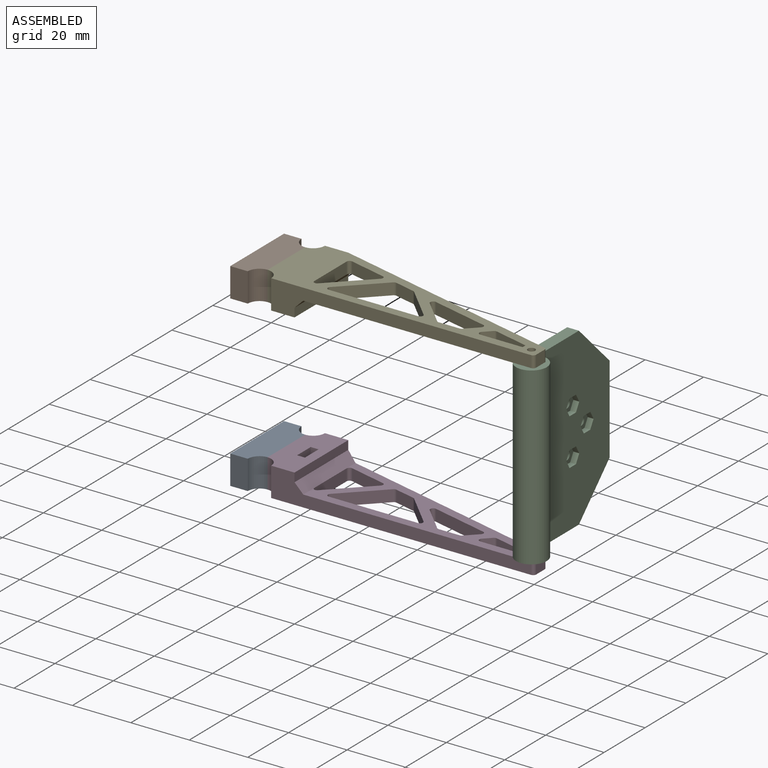
[diagram: assembled view]
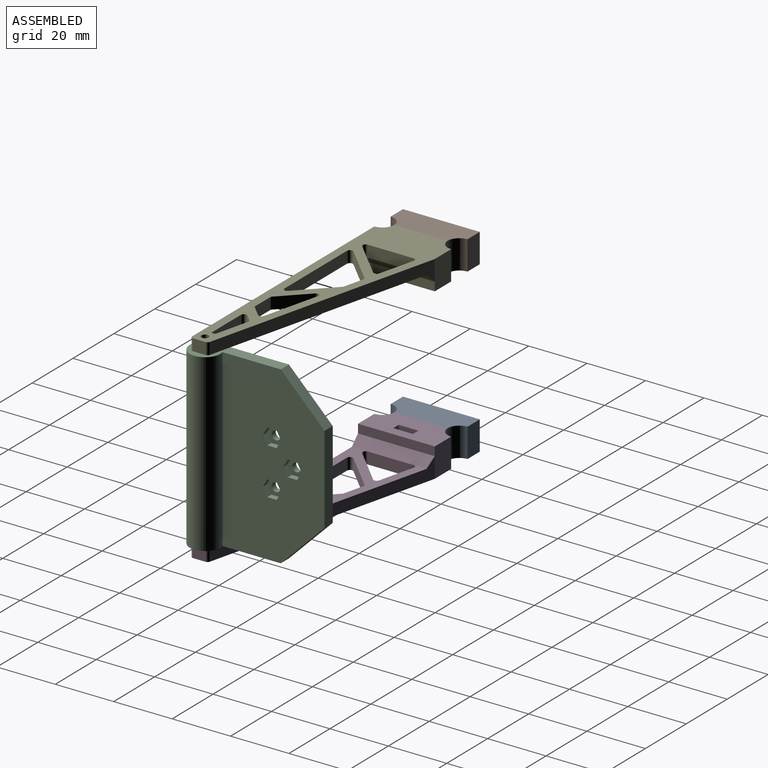
[diagram: assembled view, second angle]
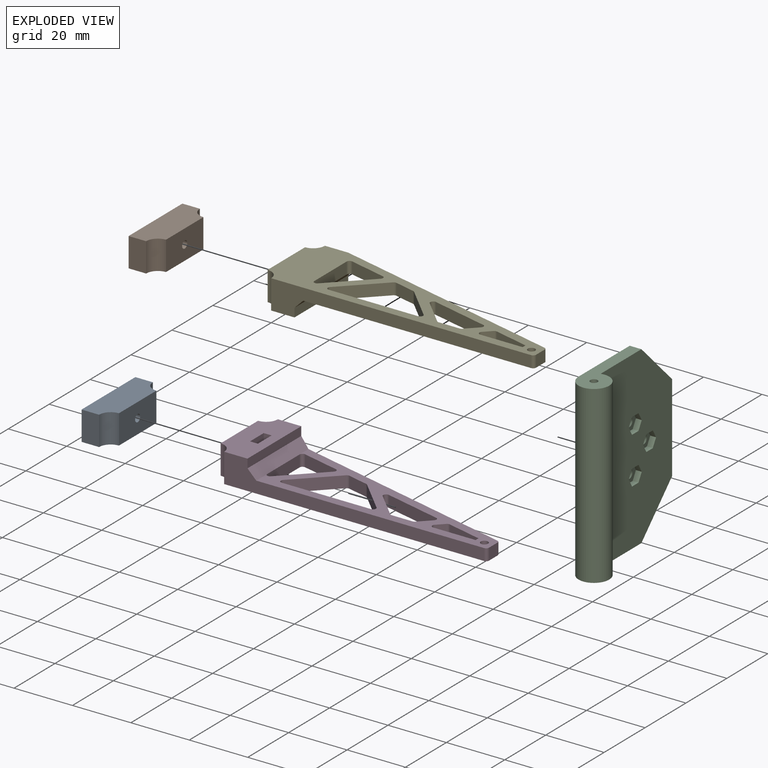
[diagram: exploded view]
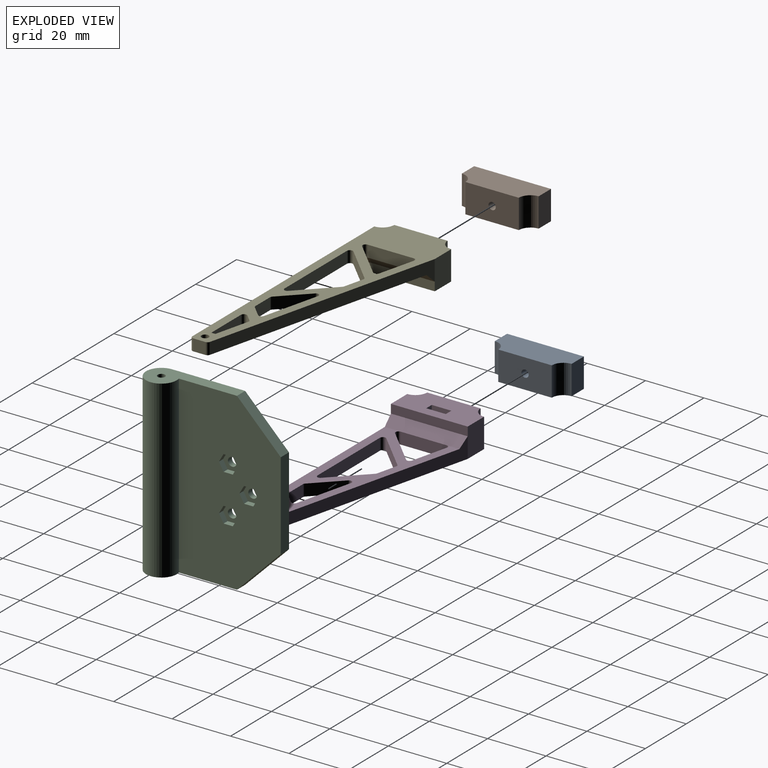
[diagram: exploded view, second angle]
ASSEMBLY  parts=5 mates=4
PART A: 11 faces, bbox 10x26.3x10 mm
  f0: cylinder r=1.25mm len=8mm, axis (-1,0,0), area 62.8mm2, adj f6,f10
  f1: cylinder r=4mm len=10mm, axis (0,0,-1), area 62.8mm2, adj f2,f6,f7,f8
  f2: plane 10x6mm, normal (0,1,0), area 60mm2, adj f1,f3,f7,f8
  f3: plane 26.3x10mm, normal (-1,0,0), area 229.8mm2, adj f2,f4,f7,f8,f9
  f4: plane 10x6mm, normal (0,-1,0), area 60mm2, adj f3,f5,f7,f8
  f5: cylinder r=4mm len=10mm, axis (0,0,-1), area 62.8mm2, adj f4,f6,f7,f8
  f6: plane 18.3x10mm, normal (1,0,0), area 178.1mm2, adj f0,f1,f5,f7,f8
  f7: plane 26.3x10mm, normal (0,0,1), area 237.9mm2, adj f1,f2,f3,f4,f5,f6
  f8: plane 26.3x10mm, normal (0,0,-1), area 237.9mm2, adj f1,f2,f3,f4,f5,f6
  f9: cylinder r=3.25mm len=6.5mm, axis (-1,0,0), area 40.8mm2, adj f3,f10
  f10: plane 6.5x6.5mm, normal (-1,0,0), area 28.3mm2, adj f0,f9
PART B: 11 faces, bbox 10x26.3x10 mm
  f0: cylinder r=1.25mm len=8mm, axis (-1,0,0), area 62.8mm2, adj f6,f10
  f1: cylinder r=4mm len=10mm, axis (0,0,1), area 62.8mm2, adj f2,f6,f7,f8
  f2: plane 10x6mm, normal (0,1,0), area 60mm2, adj f1,f3,f7,f8
  f3: plane 26.3x10mm, normal (-1,0,0), area 229.8mm2, adj f2,f4,f7,f8,f9
  f4: plane 10x6mm, normal (0,-1,0), area 60mm2, adj f3,f5,f7,f8
  f5: cylinder r=4mm len=10mm, axis (0,0,1), area 62.8mm2, adj f4,f6,f7,f8
  f6: plane 18.3x10mm, normal (1,0,0), area 178.1mm2, adj f0,f1,f5,f7,f8
  f7: plane 26.3x10mm, normal (0,0,-1), area 237.9mm2, adj f1,f2,f3,f4,f5,f6
  f8: plane 26.3x10mm, normal (0,0,1), area 237.9mm2, adj f1,f2,f3,f4,f5,f6
  f9: cylinder r=3.25mm len=6.5mm, axis (-1,0,0), area 40.8mm2, adj f3,f10
  f10: plane 6.5x6.5mm, normal (-1,0,0), area 28.3mm2, adj f0,f9
PART C: 33 faces, bbox 10.5x45.3x60 mm
  f0: plane 60x34.9mm, normal (1,0,0), area 1790.5mm2, adj f5,f6,f8,f9,f10,f11,f12,f13
  f1: cylinder r=1.5mm len=3mm, axis (1,0,0), area 18.8mm2, adj f4,f32
  f2: cylinder r=1.5mm len=3mm, axis (1,0,0), area 18.8mm2, adj f4,f25
  f3: cylinder r=1.5mm len=3mm, axis (1,0,0), area 18.8mm2, adj f4,f18
  f4: plane 60x40mm, normal (-1,0,0), area 2153.8mm2, adj f1,f2,f3,f5,f6,f8,f9,f10
  f5: cylinder r=5.25mm len=60mm, axis (0,0,-1), area 1560.1mm2, adj f0,f4,f8,f9
  f6: plane 30x4mm, normal (0,1,0), area 120mm2, adj f0,f4,f10,f11
  f7: cylinder r=1.25mm len=60mm, axis (0,0,-1), area 471.2mm2, adj f8,f9
  f8: plane 30.25x10.5mm, normal (0,0,1), area 166.5mm2, adj f0,f4,f5,f7,f11
  f9: plane 30.25x10.5mm, normal (0,0,-1), area 166.5mm2, adj f0,f4,f5,f7,f10
  f10: plane 15x15mm, normal (0,0.71,-0.71), area 84.9mm2, adj f0,f4,f6,f9
  f11: plane 15x15mm, normal (0,0.71,0.71), area 84.9mm2, adj f0,f4,f6,f8
  f12: plane 2.75x2mm, normal (0,0.87,-0.5), area 6.4mm2, adj f0,f13,f17,f18
  f13: plane 2.75x2mm, normal (0,0.87,0.5), area 6.4mm2, adj f0,f12,f14,f18
  f14: plane 3.18x2mm, normal (0,0,1), area 6.4mm2, adj f0,f13,f15,f18
  f15: plane 2.75x2mm, normal (0,-0.87,0.5), area 6.4mm2, adj f0,f14,f16,f18
  f16: plane 2.75x2mm, normal (0,-0.87,-0.5), area 6.4mm2, adj f0,f15,f17,f18
  f17: plane 3.18x2mm, normal (0,0,-1), area 6.4mm2, adj f0,f12,f16,f18
  f18: plane 6.35x5.5mm, normal (1,0,0), area 19.1mm2, adj f3,f12,f13,f14,f15,f16,f17
  f19: plane 2.75x2mm, normal (0,0.87,-0.5), area 6.4mm2, adj f0,f20,f24,f25
  f20: plane 2.75x2mm, normal (0,0.87,0.5), area 6.4mm2, adj f0,f19,f21,f25
  f21: plane 3.18x2mm, normal (0,0,1), area 6.4mm2, adj f0,f20,f22,f25
  f22: plane 2.75x2mm, normal (0,-0.87,0.5), area 6.4mm2, adj f0,f21,f23,f25
  f23: plane 2.75x2mm, normal (0,-0.87,-0.5), area 6.4mm2, adj f0,f22,f24,f25
  f24: plane 3.18x2mm, normal (0,0,-1), area 6.4mm2, adj f0,f19,f23,f25
  f25: plane 6.35x5.5mm, normal (1,0,0), area 19.1mm2, adj f2,f19,f20,f21,f22,f23,f24
  f26: plane 2.75x2mm, normal (0,0.87,-0.5), area 6.4mm2, adj f0,f27,f31,f32
  f27: plane 2.75x2mm, normal (0,0.87,0.5), area 6.4mm2, adj f0,f26,f28,f32
  f28: plane 3.18x2mm, normal (0,0,1), area 6.4mm2, adj f0,f27,f29,f32
  f29: plane 2.75x2mm, normal (0,-0.87,0.5), area 6.4mm2, adj f0,f28,f30,f32
  f30: plane 2.75x2mm, normal (0,-0.87,-0.5), area 6.4mm2, adj f0,f29,f31,f32
  f31: plane 3.18x2mm, normal (0,0,-1), area 6.4mm2, adj f0,f26,f30,f32
  f32: plane 6.35x5.5mm, normal (1,0,0), area 19.1mm2, adj f1,f26,f27,f28,f29,f30,f31
PART D: 57 faces, bbox 94x26.3x10 mm
  f0: plane 2.9x2.75mm, normal (0,-0.87,-0.5), area 0.2mm2, adj f1,f31,f34,f38,f40,f41
  f1: plane 3.35x0.05mm, normal (0,0,-1), area 0.2mm2, adj f0,f34,f35,f40
  f2: plane 18.3x10mm, normal (-1,0,0), area 178.1mm2, adj f23,f25,f27,f28,f30
  f3: plane 12.64x12.64mm, normal (-0.71,0.71,0), area 71.5mm2, adj f22,f23,f49,f51
  f4: plane 15.77x4mm, normal (1,0,0), area 63.1mm2, adj f23,f29,f49,f50
  f5: plane 30.54x4mm, normal (0,1,0), area 122.2mm2, adj f22,f23,f47,f48
  f6: plane 12.66x12.66mm, normal (0.71,-0.71,0), area 71.6mm2, adj f22,f23,f48,f52
  f7: plane 6.95x4mm, normal (-0.24,-0.97,0), area 28.6mm2, adj f22,f23,f52,f53
  f8: plane 7.17x4mm, normal (0,1,0), area 28.7mm2, adj f22,f23,f45,f46
  f9: plane 8.61x8.61mm, normal (0.71,0.71,0), area 48.7mm2, adj f22,f23,f46,f54
  f10: plane 19.55x4.84mm, normal (-0.24,-0.97,0), area 80.6mm2, adj f22,f23,f54,f55
  f11: plane 89x10mm, normal (0,-1,0), area 408.5mm2, adj f22,f23,f24,f25,f28,f29,f43
  f12: plane 4.22x4mm, normal (1,0,0), area 16.9mm2, adj f22,f23,f42,f43
  f13: plane 81.24x20.11mm, normal (0.24,0.97,0), area 339.4mm2, adj f22,f23,f26,f29,f42
  f14: plane 4x1.4mm, normal (-1,0,0), area 5.6mm2, adj f15,f20,f22,f23
  f15: plane 14.49x4mm, normal (0,1,0), area 58mm2, adj f14,f22,f23,f44
  f16: plane 4x2.37mm, normal (0.71,-0.71,0), area 13.4mm2, adj f22,f23,f44,f56
  f17: plane 10.94x10.94mm, normal (-0.71,-0.71,0), area 61.9mm2, adj f22,f23,f47,f53
  f18: plane 4x3.77mm, normal (-0.71,0.71,0), area 21.3mm2, adj f22,f23,f45,f55
  f19: cylinder r=1.25mm len=4mm, axis (0,0,-1), area 31.4mm2, adj f22,f23
  f20: plane 11.88x4mm, normal (-0.24,-0.97,0), area 49mm2, adj f14,f22,f23,f56
  f21: plane 12.64x4mm, normal (-0.24,-0.97,0), area 52.1mm2, adj f22,f23,f50,f51
  f22: plane 79x25.56mm, normal (0,0,1), area 625.7mm2, adj f3,f5,f6,f7,f8,f9,f10,f11
  f23: plane 94x26.3mm, normal (0,0,-1), area 994mm2, adj f2,f3,f4,f5,f6,f7,f8,f9
  f24: plane 26.3x3mm, normal (1,0,0), area 78.9mm2, adj f11,f26,f28,f29
  f25: cylinder r=4mm len=10mm, axis (0,0,-1), area 62.8mm2, adj f2,f11,f23,f28
  f26: plane 10x8mm, normal (0,1,0), area 80mm2, adj f13,f23,f24,f27,f28
  f27: cylinder r=4mm len=10mm, axis (0,0,-1), area 62.8mm2, adj f2,f23,f26,f28
  f28: plane 26.3x12mm, normal (0,0,1), area 272.4mm2, adj f2,f11,f24,f25,f26,f27,f31,f39
  f29: plane 26.3x3mm, normal (0.71,0,0.71), area 110mm2, adj f4,f11,f13,f22,f24
  f30: cylinder r=1.25mm len=6mm, axis (-1,0,0), area 47.1mm2, adj f2,f31
  f31: plane 7.9x6.7mm, normal (1,0,0), area 43.1mm2, adj f0,f28,f30,f35,f36,f37,f38,f39
  f32: plane 2.5x2.5mm, normal (-1,0,0), area 4.9mm2, adj f33
  f33: cylinder r=1.25mm len=2.5mm, axis (-1,0,0), area 7.9mm2, adj f32,f34
  f34: plane 6.7x5.8mm, normal (-1,0,0), area 24.2mm2, adj f0,f1,f33,f35,f36,f37,f38
  f35: plane 2.9x2.75mm, normal (0,0.87,-0.5), area 0.2mm2, adj f1,f31,f34,f36,f39,f40
  f36: plane 2.9x2.75mm, normal (0,0.87,0.5), area 9.2mm2, adj f31,f34,f35,f37
  f37: plane 3.35x2.75mm, normal (0,0,1), area 9.2mm2, adj f31,f34,f36,f38
  f38: plane 2.9x2.75mm, normal (0,-0.87,0.5), area 9.2mm2, adj f0,f31,f34,f37
  f39: plane 5x2.7mm, normal (0,1,0), area 13.5mm2, adj f28,f31,f35,f40
  f40: plane 6.7x5mm, normal (-1,0,0), area 18.9mm2, adj f0,f1,f28,f35,f39,f41
  f41: plane 5x2.7mm, normal (0,-1,0), area 13.5mm2, adj f0,f28,f31,f40
  f42: cylinder r=1mm len=4mm, axis (0,0,-1), area 5.3mm2, adj f12,f13,f22,f23
  f43: cylinder r=1mm len=4mm, axis (0,0,-1), area 6.3mm2, adj f11,f12,f22,f23
  f44: cylinder r=1mm len=4mm, axis (0,0,-1), area 9.4mm2, adj f15,f16,f22,f23
  f45: cylinder r=1mm len=4mm, axis (0,0,1), area 3.1mm2, adj f8,f18,f22,f23
  f46: cylinder r=1mm len=4mm, axis (0,0,1), area 3.1mm2, adj f8,f9,f22,f23
  f47: cylinder r=1mm len=4mm, axis (0,0,-1), area 9.4mm2, adj f5,f17,f22,f23
  f48: cylinder r=1mm len=4mm, axis (0,0,-1), area 9.4mm2, adj f5,f6,f22,f23
  f49: cylinder r=1mm len=4mm, axis (0,0,1), area 9.4mm2, adj f3,f4,f22,f23
  f50: cylinder r=1mm len=4mm, axis (0,0,1), area 7.3mm2, adj f4,f21,f22,f23
  f51: cylinder r=1mm len=4mm, axis (0,0,1), area 8.5mm2, adj f3,f21,f22,f23
  f52: cylinder r=1mm len=4mm, axis (0,0,-1), area 4.1mm2, adj f6,f7,f22,f23
  f53: cylinder r=1mm len=4mm, axis (0,0,-1), area 2.2mm2, adj f7,f17,f22,f23
  f54: cylinder r=1mm len=4mm, axis (0,0,1), area 10.4mm2, adj f9,f10,f22,f23
  f55: cylinder r=1mm len=4mm, axis (0,0,1), area 8.5mm2, adj f10,f18,f22,f23
  f56: cylinder r=1mm len=4mm, axis (0,0,1), area 4.1mm2, adj f16,f20,f22,f23
PART E: 57 faces, bbox 94x26.3x10 mm
  f0: plane 2.9x2.75mm, normal (0,-0.87,0.5), area 0.2mm2, adj f1,f31,f34,f38,f40,f41
  f1: plane 3.35x0.05mm, normal (0,0,1), area 0.2mm2, adj f0,f34,f35,f40
  f2: plane 18.3x10mm, normal (-1,0,0), area 178.1mm2, adj f23,f25,f27,f28,f30
  f3: plane 12.64x12.64mm, normal (-0.71,0.71,0), area 71.5mm2, adj f22,f23,f49,f51
  f4: plane 15.77x4mm, normal (1,0,0), area 63.1mm2, adj f23,f29,f49,f50
  f5: plane 30.54x4mm, normal (0,1,0), area 122.2mm2, adj f22,f23,f47,f48
  f6: plane 12.66x12.66mm, normal (0.71,-0.71,0), area 71.6mm2, adj f22,f23,f48,f52
  f7: plane 6.95x4mm, normal (-0.24,-0.97,0), area 28.6mm2, adj f22,f23,f52,f53
  f8: plane 7.17x4mm, normal (0,1,0), area 28.7mm2, adj f22,f23,f45,f46
  f9: plane 8.61x8.61mm, normal (0.71,0.71,0), area 48.7mm2, adj f22,f23,f46,f54
  f10: plane 19.55x4.84mm, normal (-0.24,-0.97,0), area 80.6mm2, adj f22,f23,f54,f55
  f11: plane 89x10mm, normal (0,-1,0), area 408.5mm2, adj f22,f23,f24,f25,f28,f29,f43
  f12: plane 4.22x4mm, normal (1,0,0), area 16.9mm2, adj f22,f23,f42,f43
  f13: plane 81.24x20.11mm, normal (0.24,0.97,0), area 339.4mm2, adj f22,f23,f26,f29,f42
  f14: plane 4x1.4mm, normal (-1,0,0), area 5.6mm2, adj f15,f20,f22,f23
  f15: plane 14.49x4mm, normal (0,1,0), area 58mm2, adj f14,f22,f23,f44
  f16: plane 4x2.37mm, normal (0.71,-0.71,0), area 13.4mm2, adj f22,f23,f44,f56
  f17: plane 10.94x10.94mm, normal (-0.71,-0.71,0), area 61.9mm2, adj f22,f23,f47,f53
  f18: plane 4x3.77mm, normal (-0.71,0.71,0), area 21.3mm2, adj f22,f23,f45,f55
  f19: cylinder r=1.25mm len=4mm, axis (0,0,1), area 31.4mm2, adj f22,f23
  f20: plane 11.88x4mm, normal (-0.24,-0.97,0), area 49mm2, adj f14,f22,f23,f56
  f21: plane 12.64x4mm, normal (-0.24,-0.97,0), area 52.1mm2, adj f22,f23,f50,f51
  f22: plane 79x25.56mm, normal (0,0,-1), area 625.7mm2, adj f3,f5,f6,f7,f8,f9,f10,f11
  f23: plane 94x26.3mm, normal (0,0,1), area 994mm2, adj f2,f3,f4,f5,f6,f7,f8,f9
  f24: plane 26.3x3mm, normal (1,0,0), area 78.9mm2, adj f11,f26,f28,f29
  f25: cylinder r=4mm len=10mm, axis (0,0,1), area 62.8mm2, adj f2,f11,f23,f28
  f26: plane 10x8mm, normal (0,1,0), area 80mm2, adj f13,f23,f24,f27,f28
  f27: cylinder r=4mm len=10mm, axis (0,0,1), area 62.8mm2, adj f2,f23,f26,f28
  f28: plane 26.3x12mm, normal (0,0,-1), area 272.4mm2, adj f2,f11,f24,f25,f26,f27,f31,f39
  f29: plane 26.3x3mm, normal (0.71,0,-0.71), area 110mm2, adj f4,f11,f13,f22,f24
  f30: cylinder r=1.25mm len=6mm, axis (-1,0,0), area 47.1mm2, adj f2,f31
  f31: plane 7.9x6.7mm, normal (1,0,0), area 43.1mm2, adj f0,f28,f30,f35,f36,f37,f38,f39
  f32: plane 2.5x2.5mm, normal (-1,0,0), area 4.9mm2, adj f33
  f33: cylinder r=1.25mm len=2.5mm, axis (-1,0,0), area 7.9mm2, adj f32,f34
  f34: plane 6.7x5.8mm, normal (-1,0,0), area 24.2mm2, adj f0,f1,f33,f35,f36,f37,f38
  f35: plane 2.9x2.75mm, normal (0,0.87,0.5), area 0.2mm2, adj f1,f31,f34,f36,f39,f40
  f36: plane 2.9x2.75mm, normal (0,0.87,-0.5), area 9.2mm2, adj f31,f34,f35,f37
  f37: plane 3.35x2.75mm, normal (0,0,-1), area 9.2mm2, adj f31,f34,f36,f38
  f38: plane 2.9x2.75mm, normal (0,-0.87,-0.5), area 9.2mm2, adj f0,f31,f34,f37
  f39: plane 5x2.7mm, normal (0,1,0), area 13.5mm2, adj f28,f31,f35,f40
  f40: plane 6.7x5mm, normal (-1,0,0), area 18.9mm2, adj f0,f1,f28,f35,f39,f41
  f41: plane 5x2.7mm, normal (0,-1,0), area 13.5mm2, adj f0,f28,f31,f40
  f42: cylinder r=1mm len=4mm, axis (0,0,1), area 5.3mm2, adj f12,f13,f22,f23
  f43: cylinder r=1mm len=4mm, axis (0,0,1), area 6.3mm2, adj f11,f12,f22,f23
  f44: cylinder r=1mm len=4mm, axis (0,0,1), area 9.4mm2, adj f15,f16,f22,f23
  f45: cylinder r=1mm len=4mm, axis (0,0,-1), area 3.1mm2, adj f8,f18,f22,f23
  f46: cylinder r=1mm len=4mm, axis (0,0,-1), area 3.1mm2, adj f8,f9,f22,f23
  f47: cylinder r=1mm len=4mm, axis (0,0,1), area 9.4mm2, adj f5,f17,f22,f23
  f48: cylinder r=1mm len=4mm, axis (0,0,1), area 9.4mm2, adj f5,f6,f22,f23
  f49: cylinder r=1mm len=4mm, axis (0,0,-1), area 9.4mm2, adj f3,f4,f22,f23
  f50: cylinder r=1mm len=4mm, axis (0,0,-1), area 7.3mm2, adj f4,f21,f22,f23
  f51: cylinder r=1mm len=4mm, axis (0,0,-1), area 8.5mm2, adj f3,f21,f22,f23
  f52: cylinder r=1mm len=4mm, axis (0,0,1), area 4.1mm2, adj f6,f7,f22,f23
  f53: cylinder r=1mm len=4mm, axis (0,0,1), area 2.2mm2, adj f7,f17,f22,f23
  f54: cylinder r=1mm len=4mm, axis (0,0,-1), area 10.4mm2, adj f9,f10,f22,f23
  f55: cylinder r=1mm len=4mm, axis (0,0,-1), area 8.5mm2, adj f10,f18,f22,f23
  f56: cylinder r=1mm len=4mm, axis (0,0,-1), area 4.1mm2, adj f16,f20,f22,f23
PLACE A t=(0,0,-28)mm
PLACE B t=(0,0,20)mm
PLACE C t=(91,3,6)mm
PLACE D t=(0,0,-28)mm
PLACE E t=(0,0,20)mm
MATE revolute C.f5 <-> E.f19  axis (0,0,-1) through (91,3,36)mm
MATE fastened B.f9 <-> E.f33  axis (1,0,0) through (0,13.15,35)mm
MATE fastened A.f9 <-> D.f33  axis (1,0,0) through (0,13.15,-23)mm
MATE revolute D.f19 <-> C.f5  axis (0,0,1) through (91,3,-24)mm
